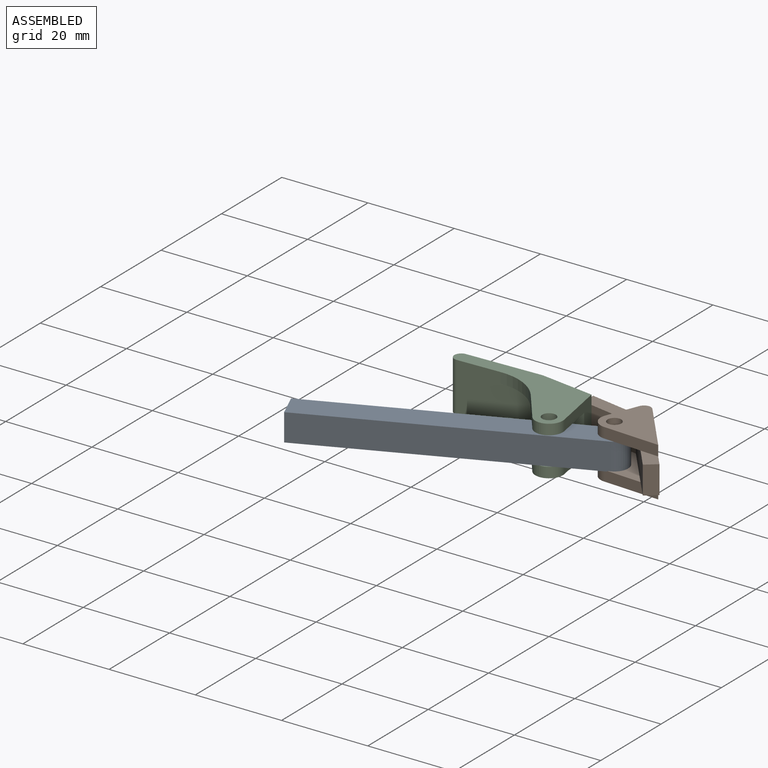
[diagram: assembled view]
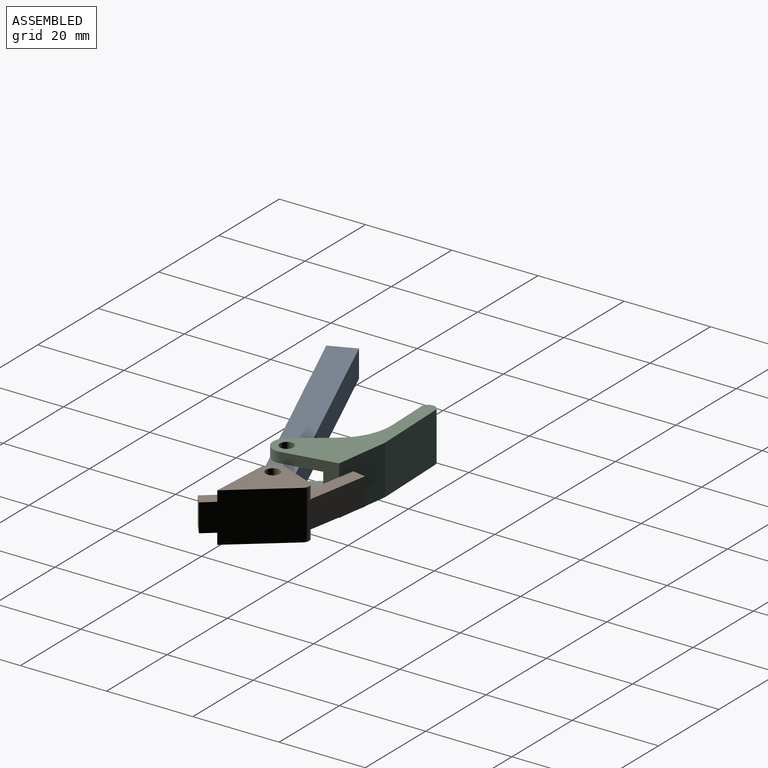
[diagram: assembled view, second angle]
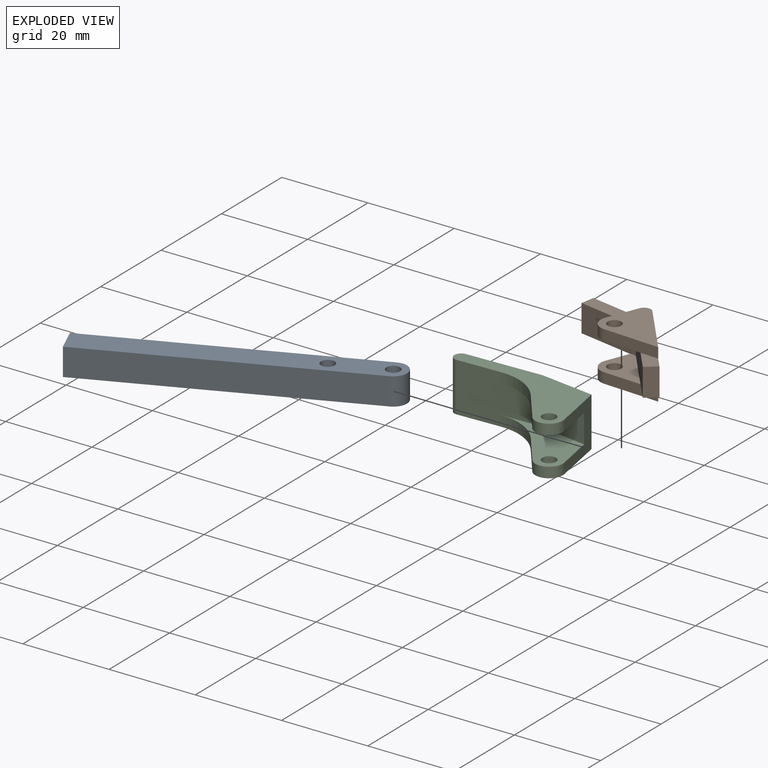
[diagram: exploded view]
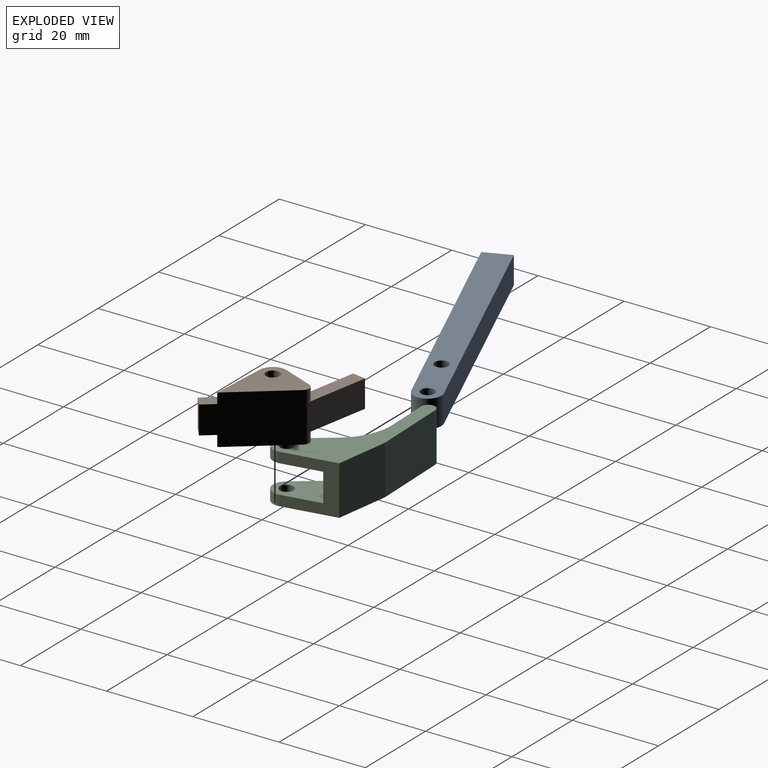
[diagram: exploded view, second angle]
ASSEMBLY  parts=3 mates=3
PART A: 8 faces, bbox 66.7x6.4x6.4 mm
  f0: plane 6.35x6.35mm, normal (-1,0,0), area 40.3mm2, adj f1,f4,f6,f7
  f1: plane 63.5x6.35mm, normal (0,-1,0), area 403.2mm2, adj f0,f2,f6,f7
  f2: cylinder r=3.17mm len=6.35mm, axis (0,0,-1), area 63.3mm2, adj f1,f4,f6,f7
  f3: cylinder r=1.59mm len=6.35mm, axis (0,0,-1), area 63.3mm2, adj f6,f7
  f4: plane 63.5x6.35mm, normal (0,1,0), area 403.2mm2, adj f0,f2,f6,f7
  f5: cylinder r=1.59mm len=6.35mm, axis (0,0,-1), area 63.3mm2, adj f6,f7
  f6: plane 66.68x6.35mm, normal (0,0,1), area 403.2mm2, adj f0,f1,f2,f3,f4,f5
  f7: plane 66.68x6.35mm, normal (0,0,-1), area 403.2mm2, adj f0,f1,f2,f3,f4,f5
PART B: 27 faces, bbox 31.2x15.8x11.4 mm
  f0: cylinder r=4.76mm len=2.41mm, axis (0,0,-1), area 0.2mm2, adj f1,f9,f13,f21
  f1: plane 12.9x2.41mm, normal (0.12,-0.99,0), area 31.4mm2, adj f0,f11,f13,f19,f21
  f2: plane 12.29x9.53mm, normal (0,0,1), area 57.5mm2, adj f4,f5,f8,f14,f15,f20
  f3: cylinder r=4.76mm len=2.53mm, axis (0,0,-1), area 0.2mm2, adj f9,f16,f20,f22
  f4: plane 14.5x12.58mm, normal (-0.66,-0.76,0), area 126.2mm2, adj f2,f8,f19,f21,f22,f23,f24,f25
  f5: cylinder r=3.17mm len=3.81mm, axis (0,0,1), area 14.5mm2, adj f2,f15,f16,f20
  f6: cylinder r=1.59mm len=11.43mm, axis (0,0,-1), area 24mm2, adj f7,f9,f10,f13,f15,f16,f17,f18
  f7: plane 15.24x6.35mm, normal (0,1,0), area 96.8mm2, adj f6,f17,f18,f26
  f8: plane 14.65x6.73mm, normal (0,-1,0), area 93.4mm2, adj f2,f4,f10,f15,f17,f18,f19,f26
  f9: plane 14.95x12.97mm, normal (0.66,0.76,0), area 208.9mm2, adj f0,f3,f6,f13,f16,f21,f22,f23
  f10: plane 7.62x2.79mm, normal (-0.98,0.2,0), area 19.5mm2, adj f6,f8,f11,f13,f17,f19
  f11: cylinder r=3.17mm len=3.81mm, axis (0,0,-1), area 14.5mm2, adj f1,f10,f13,f19
  f12: cylinder r=1.59mm len=3.18mm, axis (0,0,-1), area 24.1mm2, adj f13,f19
  f13: plane 16.53x12.7mm, normal (0,0,1), area 109.4mm2, adj f0,f1,f6,f9,f10,f11,f12
  f14: cylinder r=1.59mm len=3.18mm, axis (0,0,1), area 24.1mm2, adj f2,f16
  f15: plane 7.62x2.41mm, normal (-0.98,0.2,0), area 18.5mm2, adj f2,f5,f6,f8,f16,f18
  f16: plane 16.53x12.7mm, normal (0,0,-1), area 109.4mm2, adj f3,f5,f6,f9,f14,f15,f20
  f17: plane 15.24x3.18mm, normal (0,0,1), area 43.6mm2, adj f6,f7,f8,f10,f26
  f18: plane 15.24x3.18mm, normal (0,0,-1), area 43.6mm2, adj f6,f7,f8,f15,f26
  f19: plane 12.29x9.53mm, normal (0,0,-1), area 57.5mm2, adj f1,f4,f8,f10,f11,f12
  f20: plane 12.9x2.53mm, normal (0.12,-0.99,0), area 31.6mm2, adj f2,f3,f5,f16,f22
  f21: plane 4.48x2.61mm, normal (0,0,1), area 5.5mm2, adj f0,f1,f4,f9,f24
  f22: plane 4.48x2.61mm, normal (0.03,-0.03,-1), area 5.5mm2, adj f3,f4,f9,f20,f23
  f23: plane 4.48x4.48mm, normal (0,0,-1), area 10.1mm2, adj f4,f9,f22,f25
  f24: plane 4.48x4.48mm, normal (0,0,1), area 10.1mm2, adj f4,f9,f21,f25
  f25: plane 6.48x2.4mm, normal (0.76,-0.66,0), area 20.6mm2, adj f4,f9,f23,f24
  f26: plane 6.35x3.18mm, normal (-1,0,0), area 20.2mm2, adj f7,f8,f17,f18
PART C: 18 faces, bbox 32.2x20.6x11.4 mm
  f0: plane 20.81x16.55mm, normal (0,0,1), area 121.4mm2, adj f1,f3,f6,f10,f11,f14,f15
  f1: plane 8.65x4.98mm, normal (-0.87,-0.5,0), area 24.1mm2, adj f0,f10,f12,f15
  f2: plane 8.65x4.98mm, normal (-0.87,-0.5,0), area 24.1mm2, adj f8,f9,f13,f16
  f3: plane 13.03x6.6mm, normal (-0.26,-0.97,0), area 89.1mm2, adj f0,f6,f13,f14
  f4: plane 12.27x11.43mm, normal (0.26,0.97,0), area 145.2mm2, adj f5,f9,f12,f14
  f5: plane 17.4x11.43mm, normal (0.09,1,0), area 199.6mm2, adj f4,f9,f12,f17
  f6: plane 17.12x11.43mm, normal (-0.09,-1,0), area 161.5mm2, adj f0,f3,f9,f12,f13,f15,f16,f17
  f7: cylinder r=1.59mm len=3.18mm, axis (0,0,-1), area 24.1mm2, adj f9,f13
  f8: cylinder r=3.17mm len=5.93mm, axis (0,0,-1), area 20.5mm2, adj f2,f9,f13,f14
  f9: plane 32.16x20.58mm, normal (0,0,1), area 221.9mm2, adj f2,f4,f5,f6,f7,f8,f14,f16
  f10: cylinder r=3.17mm len=5.93mm, axis (0,0,1), area 20.5mm2, adj f0,f1,f12,f14
  f11: cylinder r=1.59mm len=3.18mm, axis (0,0,1), area 24.1mm2, adj f0,f12
  f12: plane 32.16x20.58mm, normal (0,0,-1), area 221.9mm2, adj f1,f4,f5,f6,f10,f11,f14,f15
  f13: plane 20.81x16.55mm, normal (0,0,-1), area 121.4mm2, adj f2,f3,f6,f7,f8,f14,f16
  f14: plane 12.4x11.43mm, normal (1,0.06,0), area 82.1mm2, adj f0,f3,f4,f8,f9,f10,f12,f13
  f15: cylinder r=12.7mm len=9.9mm, axis (0,0,-1), area 29.4mm2, adj f0,f1,f6,f12
  f16: cylinder r=12.7mm len=9.9mm, axis (0,0,-1), area 29.4mm2, adj f2,f6,f9,f13
  f17: cylinder r=1.59mm len=11.43mm, axis (0,0,-1), area 57mm2, adj f5,f6,f9,f12
PLACE A rot(axis=(0,0,1),22.9deg) t=(-13.56,41.06,4.13)mm
PLACE B rot(axis=(0,0,-1),10.2deg) t=(-12.16,48.87,4.38)mm
PLACE C rot(axis=(0,0,1),6.8deg) t=(-25.25,36.11,4.13)mm
MATE cylindrical C.f7 <-> A.f3  axis (0,0,1) through (-25.25,36.11,13.02)mm
MATE planar A.f7 <-> B.f18  axis (0,0,-1) through (-42.52,28.8,4.13)mm
MATE cylindrical B.f12 <-> A.f5  axis (0,0,1) through (-13.56,41.06,13.27)mm
